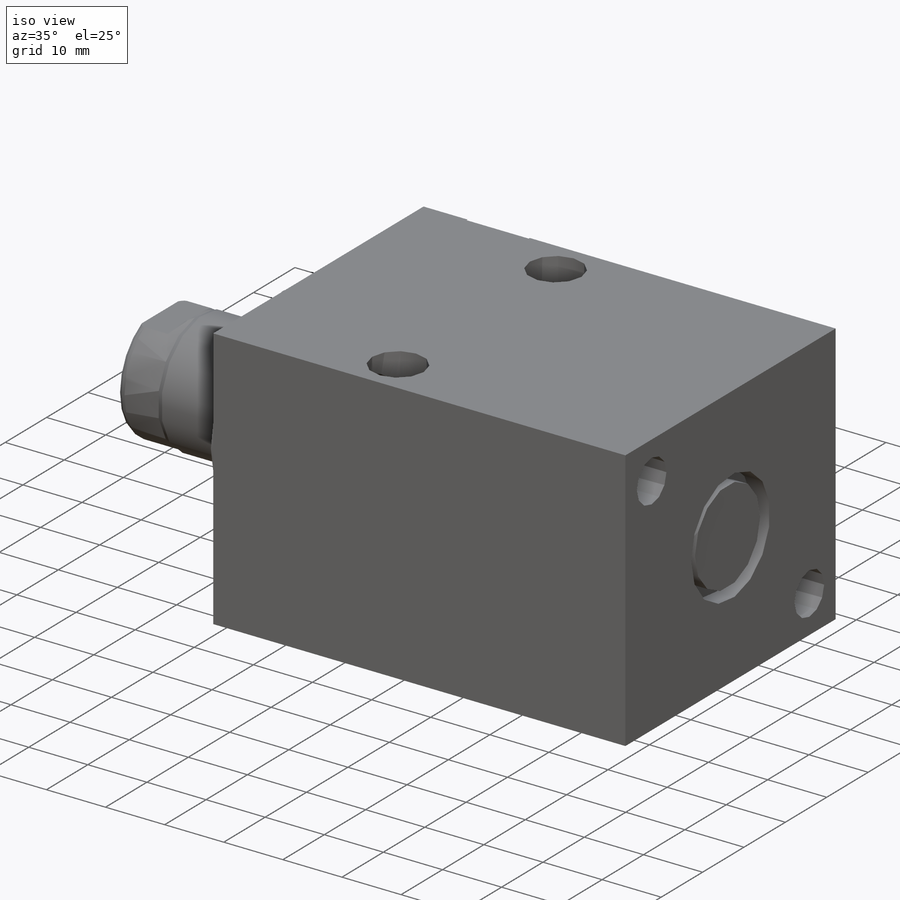
[diagram: iso view]
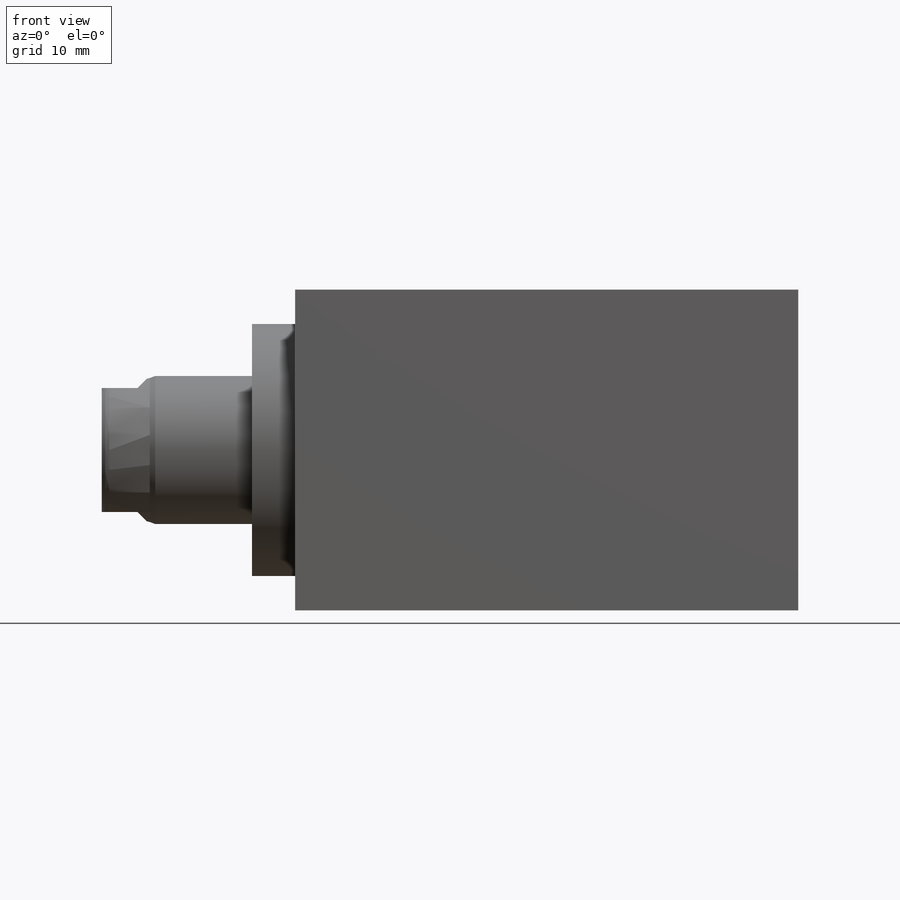
[diagram: front view]
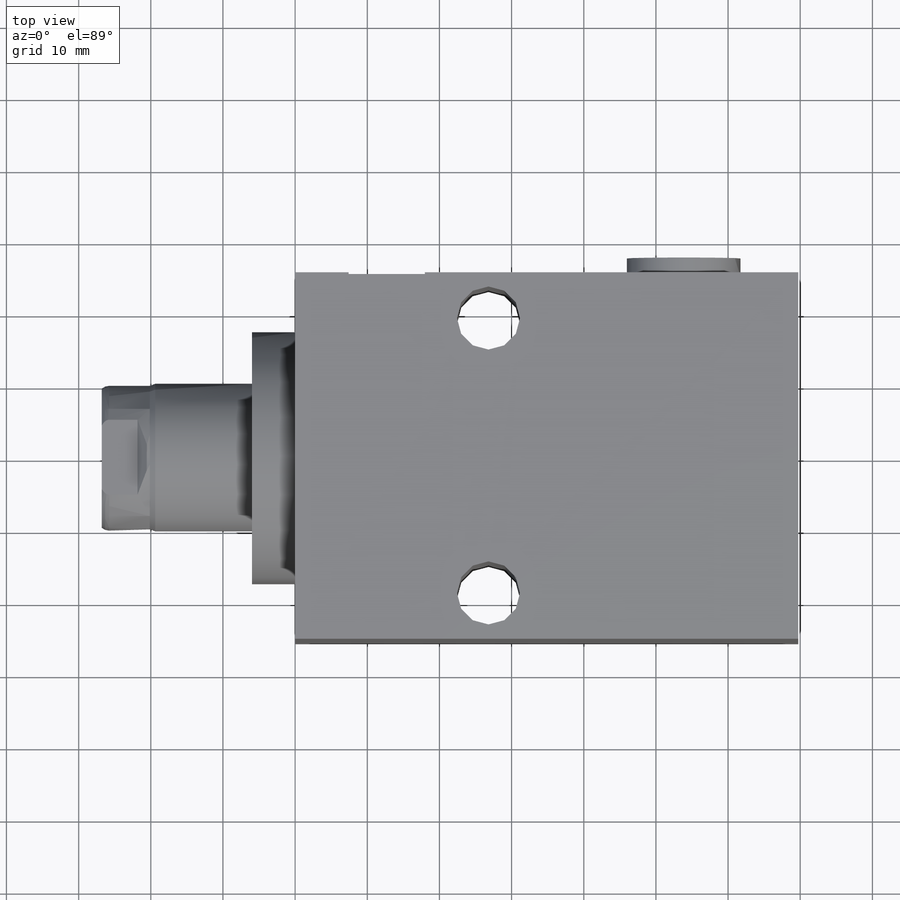
[diagram: top view]
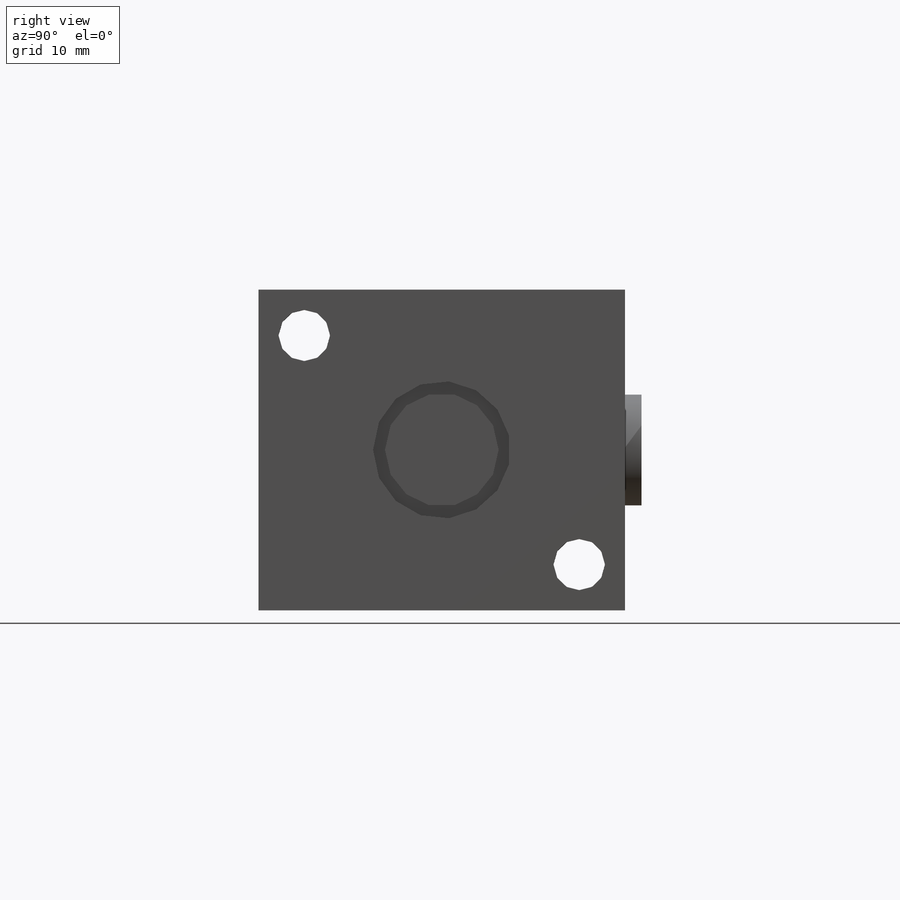
[diagram: right view]
SOLIDWORKS PART (.sldprt)
format: sldprt  version: not decoded by parser v0  size: 352,768 bytes
history: native  units: mm
features: sketch x15, plane x8, cut_revolve x5, extrude x4, hole x2, material x1, revolve x1, cut_extrude x1 (+13 scaffold rows collapsed)
feature tree (50):
  scaffold x13  (default folders/planes/origin — collapsed)
  material  "Alloy Steel"
  plane  "Plane1"
  sketch  "Sketch1"  dims[D1=44.45mm D2=22.225mm D3=50.8mm]
  extrude  "Extrude1"  Depth=69.723mm
  plane  "Plane12"  Offset=7.9248mm
  sketch  "S2D0002"  dims[c1.D1=13.97mm c1.D2=12.7mm c1.D3=9.9568mm c1.D4=~0.938906mm c2.D4=45.0deg c2.D5=12.3698mm c2.D6=~2.609729mm c3.D6=12.0deg c3.D7=2.5527mm c3.D1=14.224mm c3.D8=0.254mm c3.D9=19.05mm]
  cut_revolve  "Cut-Revolve1"  Angle=360deg
  plane  "Plane3"
  sketch  "Sketch3"  dims[c1.D1=13.97mm c1.D2=53.848mm c1.D3=9.9568mm c1.D4=~0.663907mm c2.D4=45.0deg c2.D5=~2.609729mm c3.D5=12.0deg c3.D6=12.3698mm c3.D7=2.5527mm c3.D1=14.224mm c3.D8=0.254mm c3.D9=19.05mm]
  cut_revolve  "Cut-Revolve2"  Angle=360deg
  plane  "Plane4"
  sketch  "Sketch4"  dims[c1.D1=11.3538mm c1.D2=9.9568mm c1.D3=3.048mm c1.D4=19.05mm c1.D5=2.5527mm c1.D6=~2.609729mm c2.D6=12.0deg c2.D7=~0.938906mm c3.D7=45.0deg c3.D8=12.3698mm]
  cut_revolve  "Cut-Revolve3"  Angle=360deg
  sketch  "Sketch5"  dims[D1=34.925mm]
  extrude  "Extrude2"  Depth=5.969mm
  plane  "Plane5"
  sketch  "Sketch6"  dims[D1=96.52mm D2=20.6375mm]
  revolve  "Revolve1"  Angle=360deg
  plane  "Plane6"
  sketch  "S2D0001"  dims[c1.D1=2.2352mm c2.D1=30.0deg c2.D2=8.763mm c2.D3=6.5278mm c2.D4=14.8082mm]
  cut_revolve  "Cut-Revolve4"  Angle=360deg
  plane  "Plane7"
  sketch  "Sketch8"  dims[D2=1.524mm D1=20.066mm D3=1.016mm D4=0.762mm D5=6.6548mm]
  cut_revolve  "Cut-Revolve5"  Angle=360deg
  plane  "Plane11"
  sketch  "Sketch12"  dims[c1.D1=17.1704mm c1.D2=4.953mm c1.D3=~2.047498mm c2.D3=45.0deg]
  cut_extrude  "Cut-Extrude4"  Depth=60.96mm
  sketch  "Sketch13"  dims[D1=15.748mm]
  extrude  "Extrude3"  Depth=2.54mm
  hole  "Hole1"  Diameter=7.1374mm Depth=69.723mm
  sketch  "Sketch15"  dims[D1=15.875mm D2=19.05mm D3=31.75mm D4=38.1mm]
  sketch  "Sketch14"  dims[Diameter=7.1374mm Depth=69.723mm]
  hole  "Hole2"  Diameter=8.7376mm Depth=44.45mm
  sketch  "Sketch17"  dims[D1=38.1mm D2=26.797mm]
  sketch  "Sketch16"  dims[Diameter=8.7376mm Depth=44.45mm]
  sketch  "Sketch18"  dims[D1=15.748mm]
  extrude  "Extrude4"  Depth=2.54mm
decode coverage: 28 of 28 modeling features carry decoded parameters
note: ~ marks probable driven/reference dimensions
note: suppression state not decoded; provenance and decode notes live in map.json
